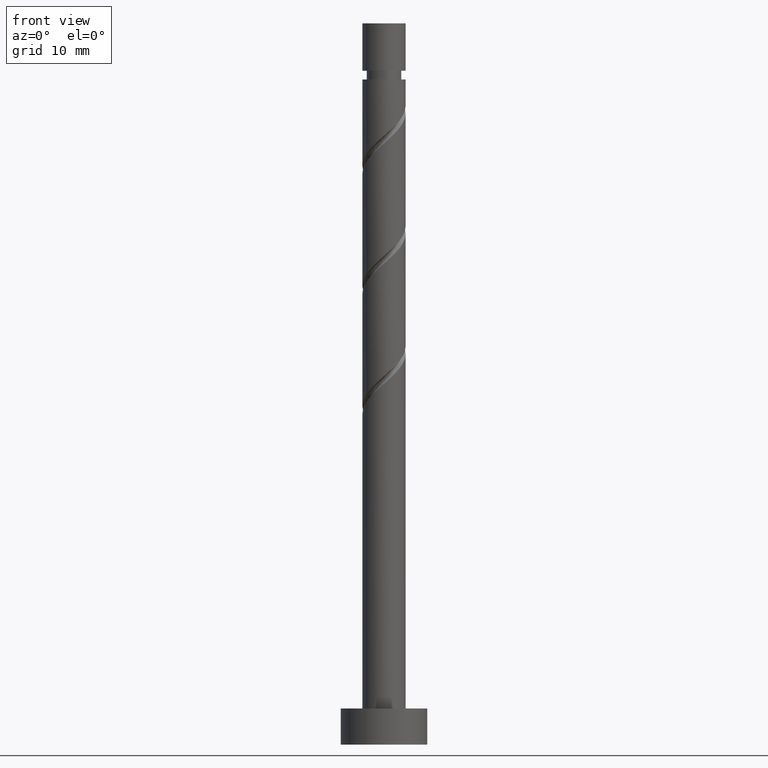
[diagram: clean part render]
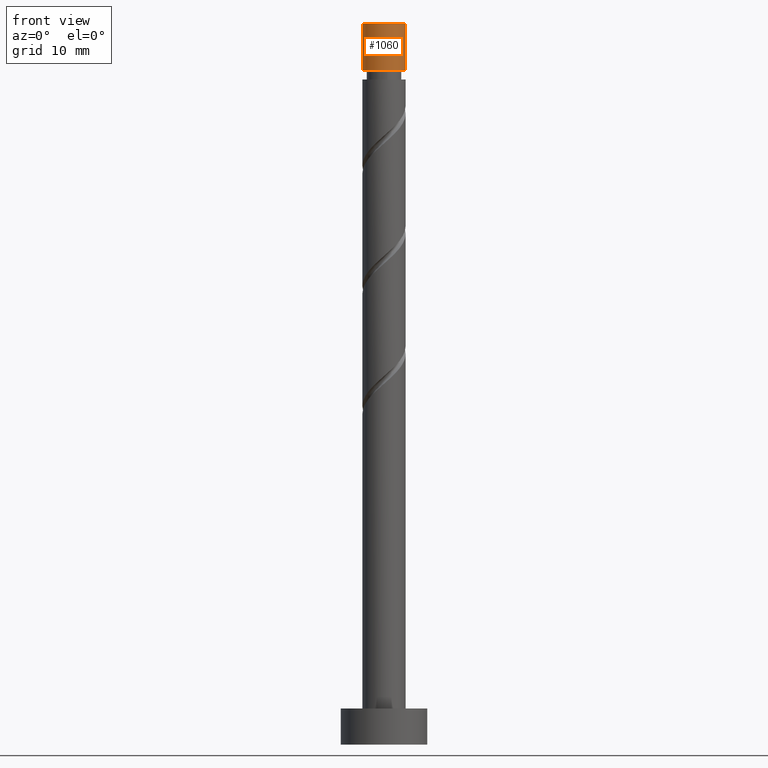
[diagram: same view with one face highlighted and labeled with its STEP entity id]
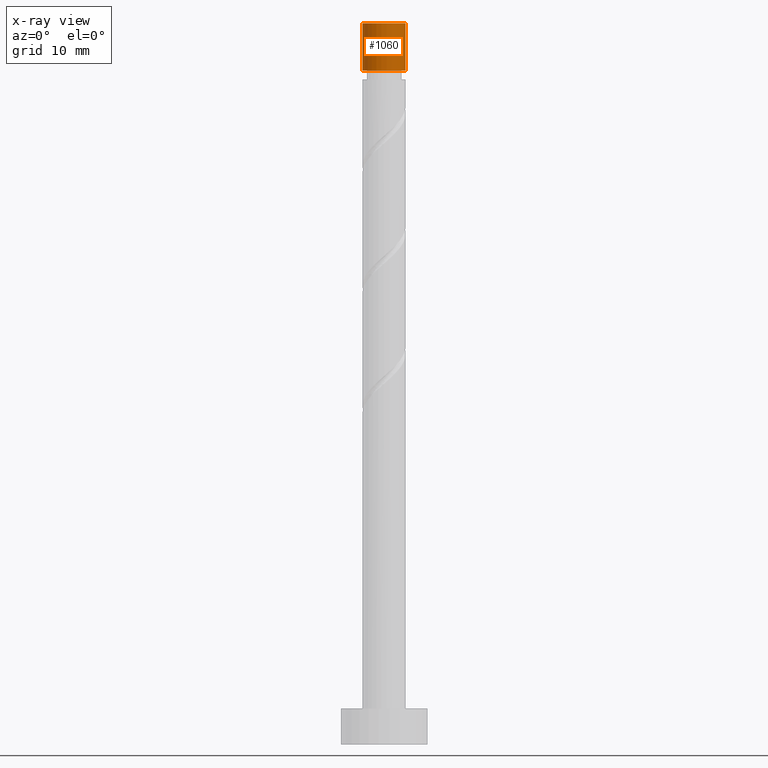
[diagram: x-ray of the same camera — body ghosted, the highlighted face saturated]
A machine part, front view. The second image highlights one B-rep face of the part: STEP entity #1060.
The next image is the same camera in x-ray: the body ghosted, the highlighted face saturated — about 0% of this face is hidden behind the body in this view.
In plain terms, the highlighted cylindrical surface (edge-blend (fillet) strip) has radius 3 mm, axis along (-0, -0, -1).
Its self-contained STEP definition (entity closure, byte-faithful):
#10 = ORIENTED_EDGE ( 'NONE', *, *, #1283, .F. ) ;
#30 = DIRECTION ( 'NONE',  ( 1.000000000000000000, 0.000000000000000000, 0.000000000000000000 ) ) ;
#82 = CARTESIAN_POINT ( 'NONE',  ( -3.000000000000001776, 0.000000000000000000, 93.42674163329729708 ) ) ;
#122 = VERTEX_POINT ( 'NONE', #82 ) ;
#158 = DIRECTION ( 'NONE',  ( -0.000000000000000000, -0.000000000000000000, -1.000000000000000000 ) ) ;
#191 = VERTEX_POINT ( 'NONE', #810 ) ;
#218 = EDGE_CURVE ( 'NONE', #191, #122, #346, .T. ) ;
#255 = CARTESIAN_POINT ( 'NONE',  ( -3.000000000000000444, 0.000000000000000000, 100.0000000000000000 ) ) ;
#274 = CIRCLE ( 'NONE', #925, 3.000000000000000444 ) ;
#316 = VECTOR ( 'NONE', #1442, 1000.000000000000000 ) ;
#346 = LINE ( 'NONE', #255, #567 ) ;
#412 = DIRECTION ( 'NONE',  ( 0.000000000000000000, 0.000000000000000000, 1.000000000000000000 ) ) ;
#413 = DIRECTION ( 'NONE',  ( -0.000000000000000000, -0.000000000000000000, -1.000000000000000000 ) ) ;
#448 = EDGE_CURVE ( 'NONE', #191, #741, #274, .T. ) ;
#459 = AXIS2_PLACEMENT_3D ( 'NONE', #1342, #413, #1210 ) ;
#515 = LINE ( 'NONE', #975, #316 ) ;
#555 = ORIENTED_EDGE ( 'NONE', *, *, #1172, .F. ) ;
#567 = VECTOR ( 'NONE', #698, 1000.000000000000000 ) ;
#618 = DIRECTION ( 'NONE',  ( -1.000000000000000000, 0.000000000000000000, 0.000000000000000000 ) ) ;
#639 = CARTESIAN_POINT ( 'NONE',  ( 0.000000000000000000, 0.000000000000000000, 100.0000000000000000 ) ) ;
#698 = DIRECTION ( 'NONE',  ( -0.000000000000000000, -0.000000000000000000, -1.000000000000000000 ) ) ;
#733 = CARTESIAN_POINT ( 'NONE',  ( 3.000000000000000444, 3.673940397442060361E-16, 100.0000000000000000 ) ) ;
#741 = VERTEX_POINT ( 'NONE', #733 ) ;
#752 = AXIS2_PLACEMENT_3D ( 'NONE', #1267, #158, #618 ) ;
#810 = CARTESIAN_POINT ( 'NONE',  ( -3.000000000000000444, 0.000000000000000000, 100.0000000000000000 ) ) ;
#841 = CYLINDRICAL_SURFACE ( 'NONE', #752, 3.000000000000000444 ) ;
#844 = CIRCLE ( 'NONE', #459, 3.000000000000001776 ) ;
#852 = EDGE_LOOP ( 'NONE', ( #555, #1400, #922, #10 ) ) ;
#922 = ORIENTED_EDGE ( 'NONE', *, *, #218, .T. ) ;
#925 = AXIS2_PLACEMENT_3D ( 'NONE', #639, #412, #30 ) ;
#975 = CARTESIAN_POINT ( 'NONE',  ( 3.000000000000000444, 3.673940397442060361E-16, 100.0000000000000000 ) ) ;
#1060 = ADVANCED_FACE ( 'NONE', ( #1411 ), #841, .T. ) ;
#1082 = VERTEX_POINT ( 'NONE', #1449 ) ;
#1172 = EDGE_CURVE ( 'NONE', #741, #1082, #515, .T. ) ;
#1210 = DIRECTION ( 'NONE',  ( -1.000000000000000000, 0.000000000000000000, 0.000000000000000000 ) ) ;
#1267 = CARTESIAN_POINT ( 'NONE',  ( 0.000000000000000000, 0.000000000000000000, 100.0000000000000000 ) ) ;
#1283 = EDGE_CURVE ( 'NONE', #1082, #122, #844, .T. ) ;
#1342 = CARTESIAN_POINT ( 'NONE',  ( 0.000000000000000000, 0.000000000000000000, 93.42674163329729708 ) ) ;
#1400 = ORIENTED_EDGE ( 'NONE', *, *, #448, .F. ) ;
#1411 = FACE_OUTER_BOUND ( 'NONE', #852, .T. ) ;
#1442 = DIRECTION ( 'NONE',  ( -0.000000000000000000, -0.000000000000000000, -1.000000000000000000 ) ) ;
#1449 = CARTESIAN_POINT ( 'NONE',  ( 3.000000000000001776, 3.673940397442061840E-16, 93.42674163329729708 ) ) ;